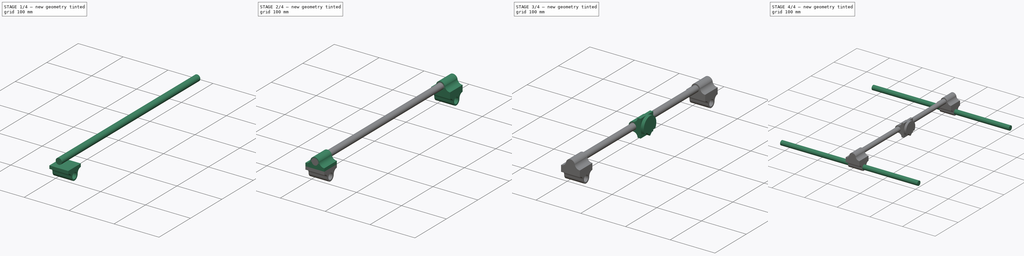
[diagram: build sequence overview — one tinted view per stage of 4, left to right]
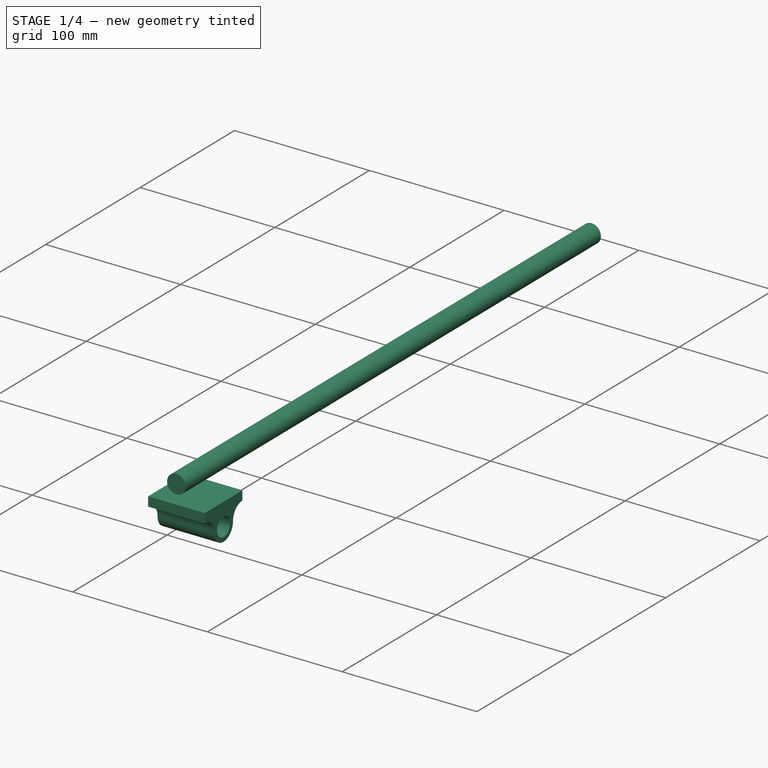
[diagram: stage 1 of 4 — iso view after this stage's code; geometry added in this stage tinted green]
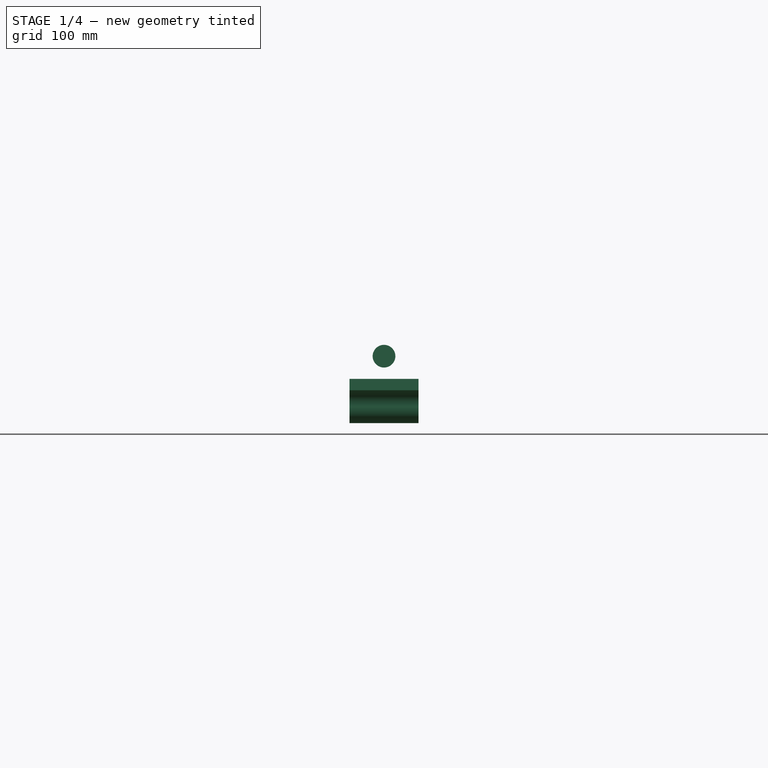
[diagram: stage 1 of 4 — front view after this stage's code; geometry added in this stage tinted green]
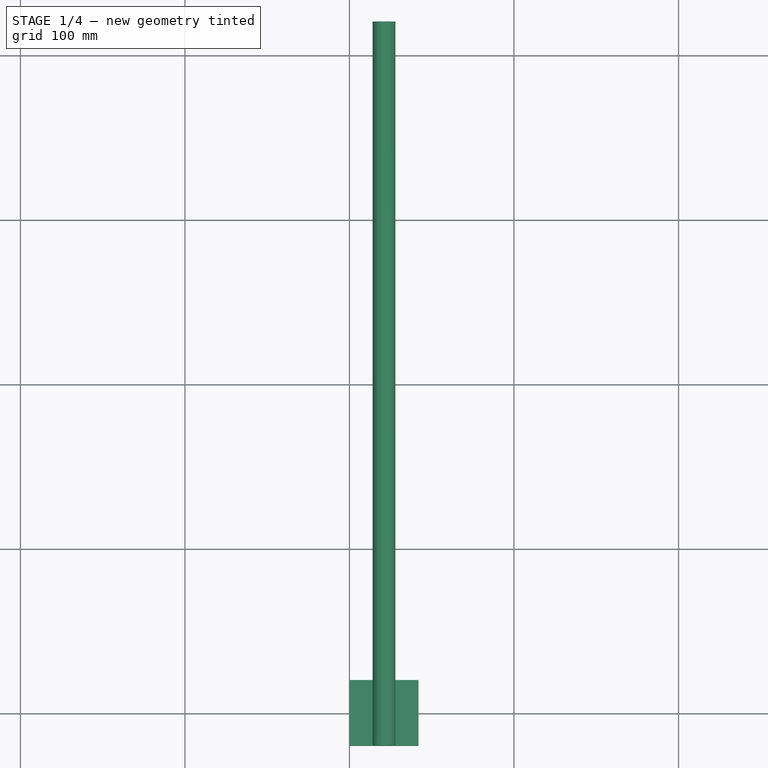
[diagram: stage 1 of 4 — top view after this stage's code; geometry added in this stage tinted green]
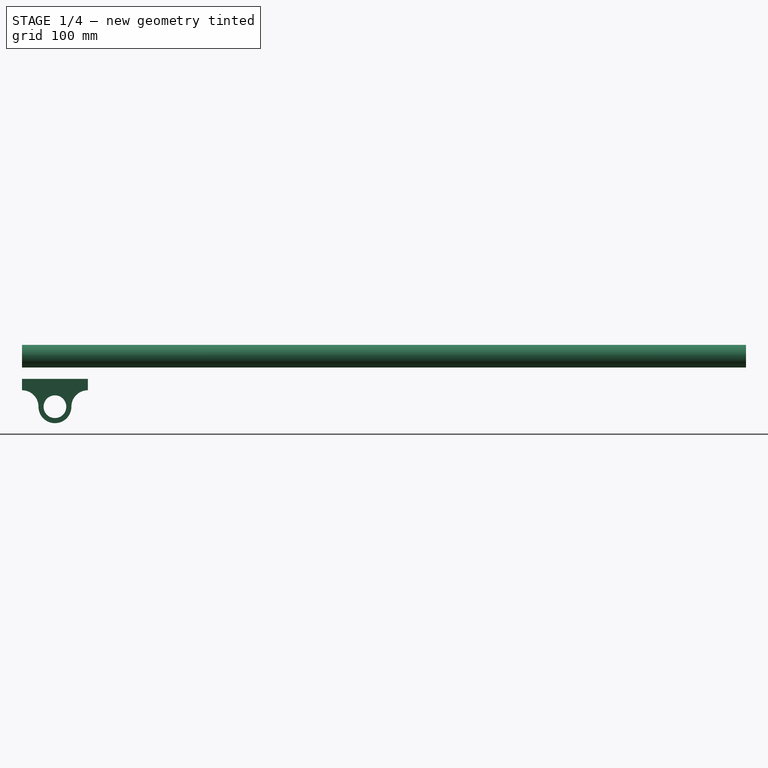
[diagram: stage 1 of 4 — right view after this stage's code; geometry added in this stage tinted green]
FCSTD DOCUMENT  (FreeCAD 0.19R)
Label: Plotter
License: All rights reserved
LicenseURL: http://en.wikipedia.org/wiki/All_rights_reserved
objects: Sketcher::SketchObject×9, PartDesign::Pad×9, PartDesign::Body×9, Part::MultiFuse×1
note: 37 computed .brp shape members not serialized (recipe doc carries the construction recipe); baked Part::Feature solids carry a one-line shape summary decoded from their .brp

FEATURE [PartDesign::Body] Body005  label="Y_Axis_Socket2"
  Group = -> [Sketch015,Pad005]
  Origin = -> Origin005
  Tip = -> Pad005
FEATURE [Sketcher::SketchObject] Sketch016
  FullyConstrained = true
  Placement = pos=(0,-20,0) rot=(1,0,0;1.5708rad)
  sketch-geometry (1):
    g0: Circle CenterX=21 CenterY=30.7 CenterZ=0 NormalX=0 NormalY=0 NormalZ=1 AngleXU=0 Radius=6.9
  constraints (3):
    c: Radius(g0) = 6.9
    c: DistanceX(g-1,g0) = 21
    c: DistanceY(g-1,g0) = 30.7
FEATURE [PartDesign::Pad] Pad006
  Direction = (1,1,1)
  Length = 440
  Length2 = 100
  Placement = pos=(0,-20,0) rot=(1,0,0;1.5708rad)
  Profile = -> Sketch016
  Refine = true
  Reversed = true
  Type = 0
FEATURE [PartDesign::Body] Body008  label="A_Axis"
  Group = -> [Sketch018,Pad008]
  Origin = -> Origin008
  Tip = -> Pad008
FEATURE [PartDesign::Pad] Pad001
  Direction = (1,1,1)
  Length = 42
  Length2 = 100
  Placement = pos=(0,0,0) rot=(0.57735,0.57735,0.57735;2.0944rad)
  Profile = -> Sketch011
  Refine = true
  Type = 0
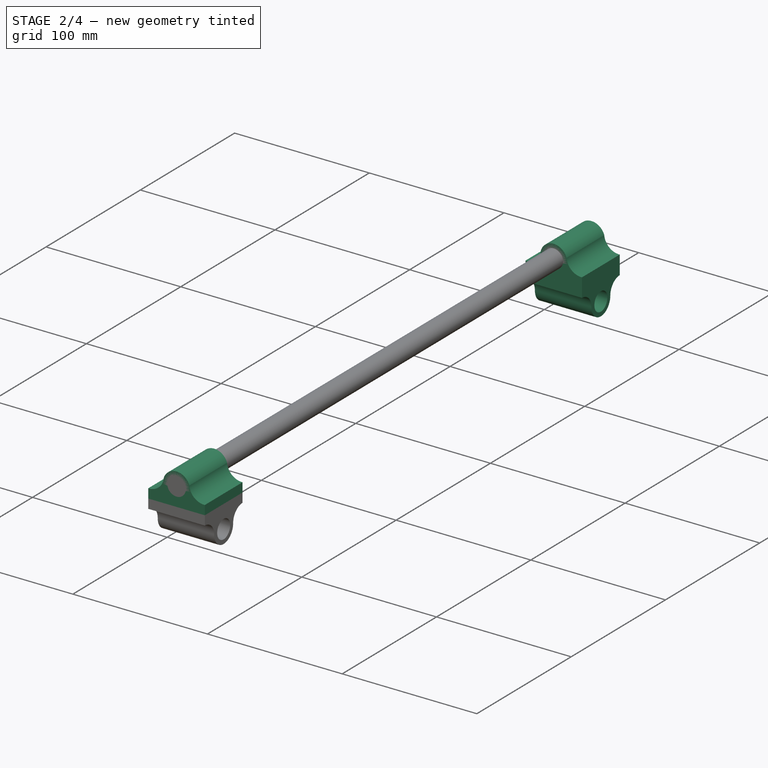
[diagram: stage 2 of 4 — iso view after this stage's code; geometry added in this stage tinted green]
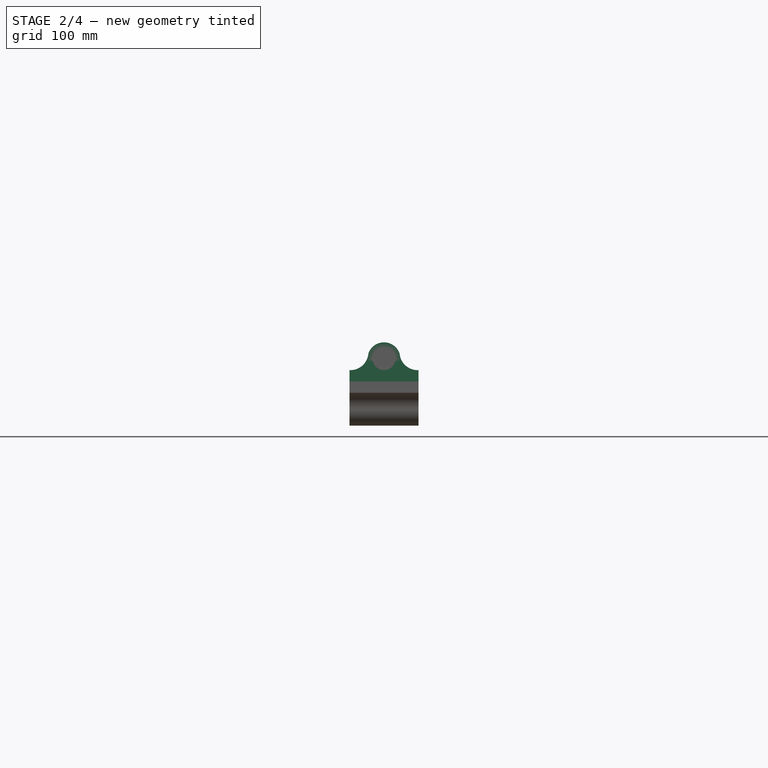
[diagram: stage 2 of 4 — front view after this stage's code; geometry added in this stage tinted green]
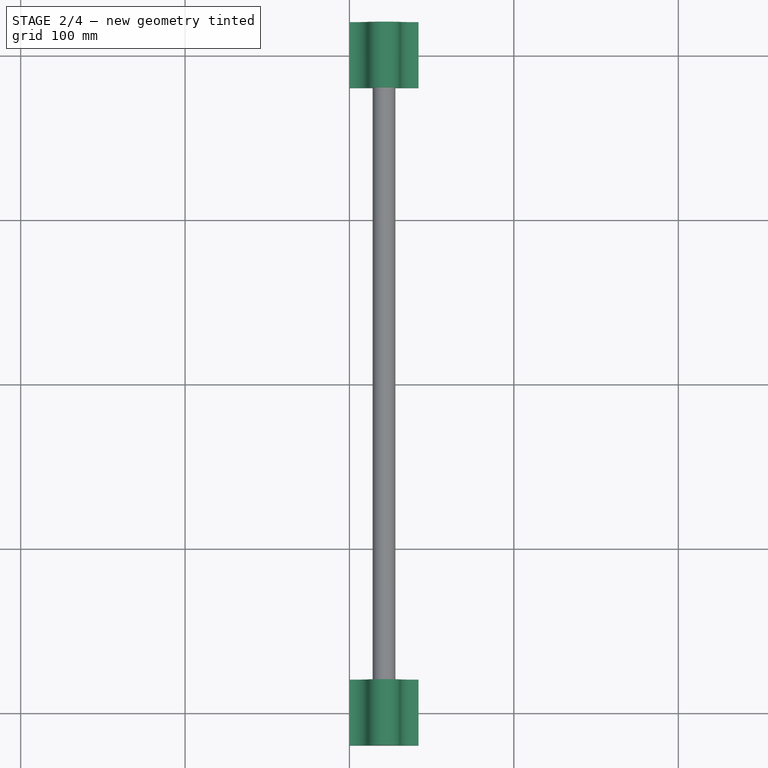
[diagram: stage 2 of 4 — top view after this stage's code; geometry added in this stage tinted green]
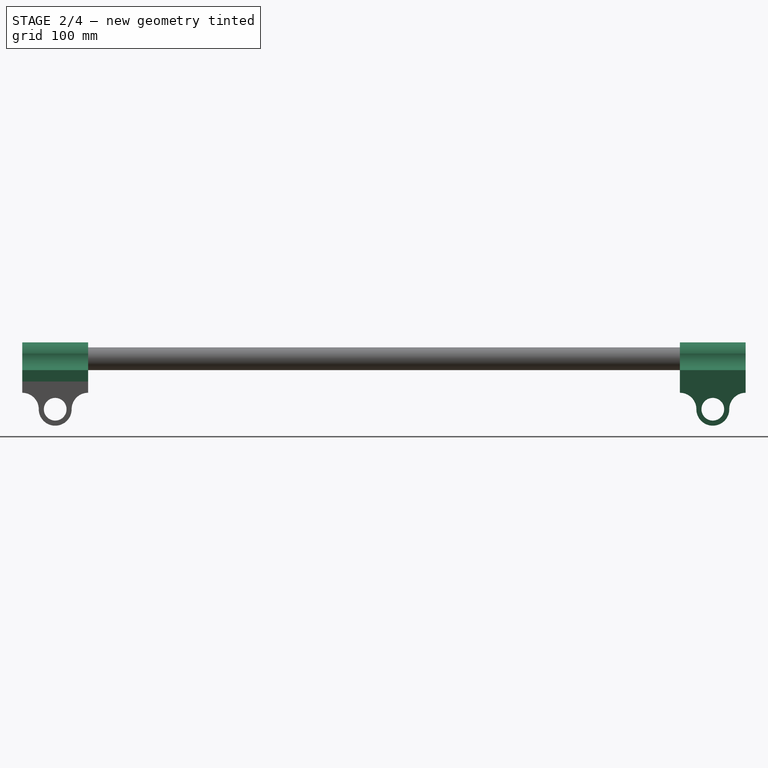
[diagram: stage 2 of 4 — right view after this stage's code; geometry added in this stage tinted green]
FEATURE [PartDesign::Body] Body  label="X_Axis_Rail1"
  Group = -> [Sketch,Pad]
  Origin = -> Origin
  Tip = -> Pad
FEATURE [Sketcher::SketchObject] Sketch011
  FullyConstrained = true
  Placement = pos=(0,0,0) rot=(0.57735,0.57735,0.57735;2.0944rad)
  sketch-geometry (7):
    g0: Circle CenterX=0 CenterY=0 CenterZ=0 NormalX=0 NormalY=0 NormalZ=1 AngleXU=0 Radius=6.9
    g1: LineSegment StartX=-20 StartY=16.9 StartZ=0 EndX=20 EndY=16.9 EndZ=0
    g2: LineSegment StartX=20 StartY=16.9 StartZ=0 EndX=20 EndY=10 EndZ=0
    g3: ArcOfCircle CenterX=20 CenterY=-2.6e-15 CenterZ=0 NormalX=0 NormalY=0 NormalZ=1 AngleXU=0 Radius=10 StartAngle=1.5708 EndAngle=3.14159
    g4: ArcOfCircle CenterX=4e-16 CenterY=5.56859e-07 CenterZ=0 NormalX=0 NormalY=0 NormalZ=1 AngleXU=0 Radius=10 StartAngle=3.14159 EndAngle=6.28319
    g5: ArcOfCircle CenterX=-20 CenterY=-2.4e-15 CenterZ=0 NormalX=0 NormalY=0 NormalZ=1 AngleXU=0 Radius=10 StartAngle=2e-16 EndAngle=1.5708
    g6: LineSegment StartX=-20 StartY=10 StartZ=0 EndX=-20 EndY=16.9 EndZ=0
  constraints (21):
    c: Coincident(g0,g-1)
    c: Radius(g0) = 6.9
    c: Coincident(g1,g2)
    c: Vertical(g2)
    c: DistanceX(g1,g1) = 40
    c: DistanceY(g2,g2) = 6.9
    c: DistanceY(g0,g1) = 16.9
    c: Symmetric(g1,g1,g-2)
    c: Coincident(g3,g2)
    c: PointOnObject(g3,g-1)
    c: Radius(g3) = 10
    c: Coincident(g4,g3)
    c: Radius(g4) = 10
    c: Symmetric(g4,g3,g-2)
    c: DistanceX(g4,g3) = 20
    c: Coincident(g5,g4)
    c: Radius(g5) = 10
    c: Coincident(g6,g5)
    c: Coincident(g6,g1)
    c: Vertical(g6)
    c: Equal(g6,g2)
FEATURE [Sketcher::SketchObject] Sketch012
  FullyConstrained = true
  Placement = pos=(0,400,0) rot=(0.57735,0.57735,0.57735;2.0944rad)
  sketch-geometry (7):
    g0: Circle CenterX=0 CenterY=0 CenterZ=0 NormalX=0 NormalY=0 NormalZ=1 AngleXU=0 Radius=6.9
    g1: LineSegment StartX=-20 StartY=16.9 StartZ=0 EndX=20 EndY=16.9 EndZ=0
    g2: LineSegment StartX=20 StartY=16.9 StartZ=0 EndX=20 EndY=10 EndZ=0
    g3: ArcOfCircle CenterX=20 CenterY=-2.6e-15 CenterZ=0 NormalX=0 NormalY=0 NormalZ=1 AngleXU=0 Radius=10 StartAngle=1.5708 EndAngle=3.14159
    g4: ArcOfCircle CenterX=4e-16 CenterY=5.56859e-07 CenterZ=0 NormalX=0 NormalY=0 NormalZ=1 AngleXU=0 Radius=10 StartAngle=3.14159 EndAngle=6.28319
    g5: ArcOfCircle CenterX=-20 CenterY=-2.4e-15 CenterZ=0 NormalX=0 NormalY=0 NormalZ=1 AngleXU=0 Radius=10 StartAngle=2e-16 EndAngle=1.5708
    g6: LineSegment StartX=-20 StartY=10 StartZ=0 EndX=-20 EndY=16.9 EndZ=0
  constraints (21):
    c: Coincident(g0,g-1)
    c: Radius(g0) = 6.9
    c: Coincident(g1,g2)
    c: Vertical(g2)
    c: DistanceX(g1,g1) = 40
    c: DistanceY(g2,g2) = 6.9
    c: DistanceY(g0,g1) = 16.9
    c: Symmetric(g1,g1,g-2)
    c: Coincident(g3,g2)
    c: PointOnObject(g3,g-1)
    c: Radius(g3) = 10
    c: Coincident(g4,g3)
    c: Radius(g4) = 10
    c: Symmetric(g4,g3,g-2)
    c: DistanceX(g4,g3) = 20
    c: Coincident(g5,g4)
    c: Radius(g5) = 10
    c: Coincident(g6,g5)
    c: Coincident(g6,g1)
    c: Vertical(g6)
    c: Equal(g6,g2)
FEATURE [PartDesign::Pad] Pad002
  Direction = (1,1,1)
  Length = 42
  Length2 = 100
  Placement = pos=(0,400,0) rot=(0.57735,0.57735,0.57735;2.0944rad)
  Profile = -> Sketch012
  Refine = true
  Type = 0
FEATURE [PartDesign::Body] Body003  label="X_Axis_Rail2"
  Group = -> [Sketch013,Pad003]
  Origin = -> Origin003
  Tip = -> Pad003
FEATURE [Sketcher::SketchObject] Sketch014
  FullyConstrained = true
  Placement = pos=(0,0,0) rot=(1,0,0;1.5708rad)
  expr: Constraints[12] = 23.8 + 6.9
  expr: Constraints[6] = 16.9 + 6.9
  sketch-geometry (9):
    g0: LineSegment StartX=-2.8e-15 StartY=23.8 StartZ=0 EndX=-2.8e-15 EndY=16.9 EndZ=0
    g1: LineSegment StartX=-2.8e-15 StartY=16.9 StartZ=0 EndX=42 EndY=16.9 EndZ=0
    g2: LineSegment StartX=42 StartY=16.9 StartZ=0 EndX=42 EndY=23.8 EndZ=0
    g3: ArcOfCircle CenterX=0.536994 CenterY=34.7869 CenterZ=0 NormalX=0 NormalY=0 NormalZ=1 AngleXU=0 Radius=11 StartAngle=4.66355 EndAngle=6.19335
    g4: ArcOfCircle CenterX=21 CenterY=30.7 CenterZ=0 NormalX=0 NormalY=0 NormalZ=1 AngleXU=0 Radius=10 StartAngle=0.315193 EndAngle=2.8264
    g5: ArcOfCircle CenterX=41.463 CenterY=34.7869 CenterZ=0 NormalX=0 NormalY=0 NormalZ=1 AngleXU=0 Radius=11 StartAngle=3.23143 EndAngle=4.76123
    g6: LineSegment StartX=21 StartY=52.63 StartZ=0 EndX=21 EndY=19.82 EndZ=0
    g7: LineSegment StartX=-7.22 StartY=33.8 StartZ=0 EndX=53.79 EndY=33.8 EndZ=0
    g8: Circle CenterX=21 CenterY=30.7 CenterZ=0 NormalX=0 NormalY=0 NormalZ=1 AngleXU=0 Radius=6.9
  constraints (29):
    c: PointOnObject(g0,g-2)
    c: Vertical(g0)
    c: Coincident(g0,g1)
    c: Horizontal(g1)
    c: Coincident(g1,g2)
    c: Vertical(g2)
    c: DistanceY(g-1,g0) = 23.8
    c: DistanceY(g0,g0) = 6.9
    c: Coincident(g3,g0)
    c: Coincident(g4,g3)
    c: Coincident(g5,g4)
    c: Radius(g3) = 11
    c: DistanceY(g4) = 30.7
    c: Coincident(g2,g5)
    c: Equal(g2,g0)
    c: DistanceX(g1,g1) = 42
    c: DistanceX(g-1,g6) = 21
    c: Symmetric(g3,g4,g6)
    c: Horizontal(g7)
    c: DistanceY(g-1,g7) = 33.8
    c: PointOnObject(g3,g7)
    c: Symmetric(g3,g5,g6)
    c: Radius(g4) = 10
    c: DistanceX(g-2,g7) = 53.79
    c: DistanceY(g-1,g6) = 19.82
    c: Distance(g6) = 32.81
    c: DistanceX(g7,g7) = 61.01
    c: Coincident(g8,g4)
    c: Radius(g8) = 6.9
FEATURE [PartDesign::Pad] Pad004
  Direction = (1,1,1)
  Length = 40
  Length2 = 100
  Midplane = true
  Placement = pos=(0,0,0) rot=(1,0,0;1.5708rad)
  Profile = -> Sketch014
  Refine = true
  Type = 0
FEATURE [PartDesign::Body] Body004  label="Y_Axis_Socket1"
  Group = -> [Sketch014,Pad004]
  Origin = -> Origin004
  Tip = -> Pad004
FEATURE [Sketcher::SketchObject] Sketch015
  FullyConstrained = true
  Placement = pos=(0,400,0) rot=(1,0,0;1.5708rad)
  expr: Constraints[6] = 16.9 + 6.9
  expr: Constraints[12] = 23.8 + 6.9
  sketch-geometry (9):
    g0: LineSegment StartX=-2.8e-15 StartY=23.8 StartZ=0 EndX=-2.8e-15 EndY=16.9 EndZ=0
    g1: LineSegment StartX=-2.8e-15 StartY=16.9 StartZ=0 EndX=42 EndY=16.9 EndZ=0
    g2: LineSegment StartX=42 StartY=16.9 StartZ=0 EndX=42 EndY=23.8 EndZ=0
    g3: ArcOfCircle CenterX=0.536994 CenterY=34.7869 CenterZ=0 NormalX=0 NormalY=0 NormalZ=1 AngleXU=0 Radius=11 StartAngle=4.66355 EndAngle=6.19335
    g4: ArcOfCircle CenterX=21 CenterY=30.7 CenterZ=0 NormalX=0 NormalY=0 NormalZ=1 AngleXU=0 Radius=10 StartAngle=0.315193 EndAngle=2.8264
    g5: ArcOfCircle CenterX=41.463 CenterY=34.7869 CenterZ=0 NormalX=0 NormalY=0 NormalZ=1 AngleXU=0 Radius=11 StartAngle=3.23143 EndAngle=4.76123
    g6: LineSegment StartX=21 StartY=52.63 StartZ=0 EndX=21 EndY=19.82 EndZ=0
    g7: LineSegment StartX=-7.22 StartY=33.8 StartZ=0 EndX=53.79 EndY=33.8 EndZ=0
    g8: Circle CenterX=21 CenterY=30.7 CenterZ=0 NormalX=0 NormalY=0 NormalZ=1 AngleXU=0 Radius=6.9
  constraints (29):
    c: PointOnObject(g0,g-2)
    c: Vertical(g0)
    c: Coincident(g0,g1)
    c: Horizontal(g1)
    c: Coincident(g1,g2)
    c: Vertical(g2)
    c: DistanceY(g-1,g0) = 23.8
    c: DistanceY(g0,g0) = 6.9
    c: Coincident(g3,g0)
    c: Coincident(g4,g3)
    c: Coincident(g5,g4)
    c: Radius(g3) = 11
    c: DistanceY(g4) = 30.7
    c: Coincident(g2,g5)
    c: Equal(g2,g0)
    c: DistanceX(g1,g1) = 42
    c: DistanceX(g-1,g6) = 21
    c: Symmetric(g3,g4,g6)
    c: Horizontal(g7)
    c: DistanceY(g-1,g7) = 33.8
    c: PointOnObject(g3,g7)
    c: Symmetric(g3,g5,g6)
    c: Radius(g4) = 10
    c: DistanceX(g-2,g7) = 53.79
    c: DistanceY(g-1,g6) = 19.82
    c: Distance(g6) = 32.81
    c: DistanceX(g7,g7) = 61.01
    c: Coincident(g8,g4)
    c: Radius(g8) = 6.9
FEATURE [PartDesign::Pad] Pad005
  Direction = (1,1,1)
  Length = 40
  Length2 = 100
  Midplane = true
  Placement = pos=(0,400,0) rot=(1,0,0;1.5708rad)
  Profile = -> Sketch015
  Refine = true
  Type = 0
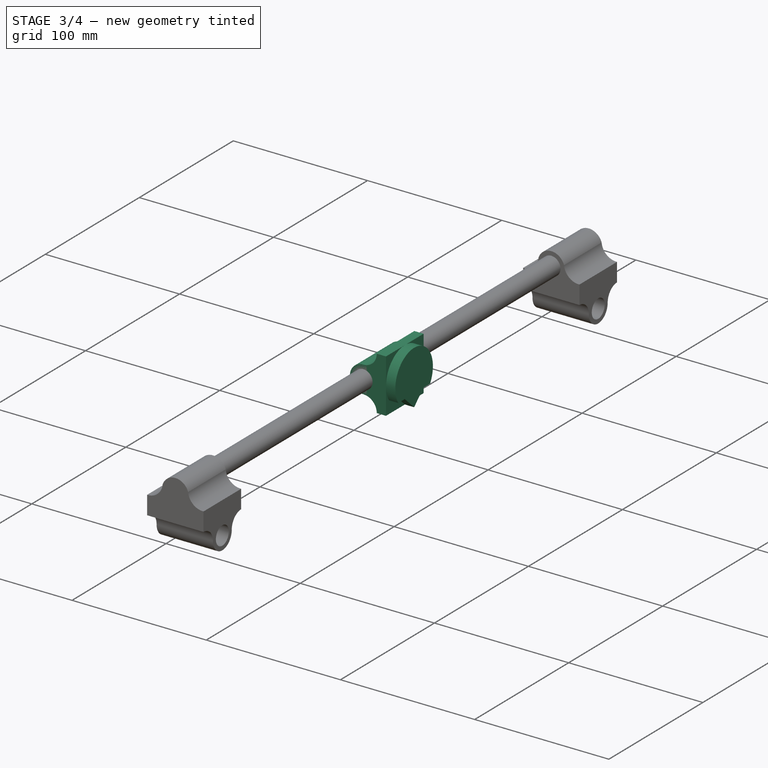
[diagram: stage 3 of 4 — iso view after this stage's code; geometry added in this stage tinted green]
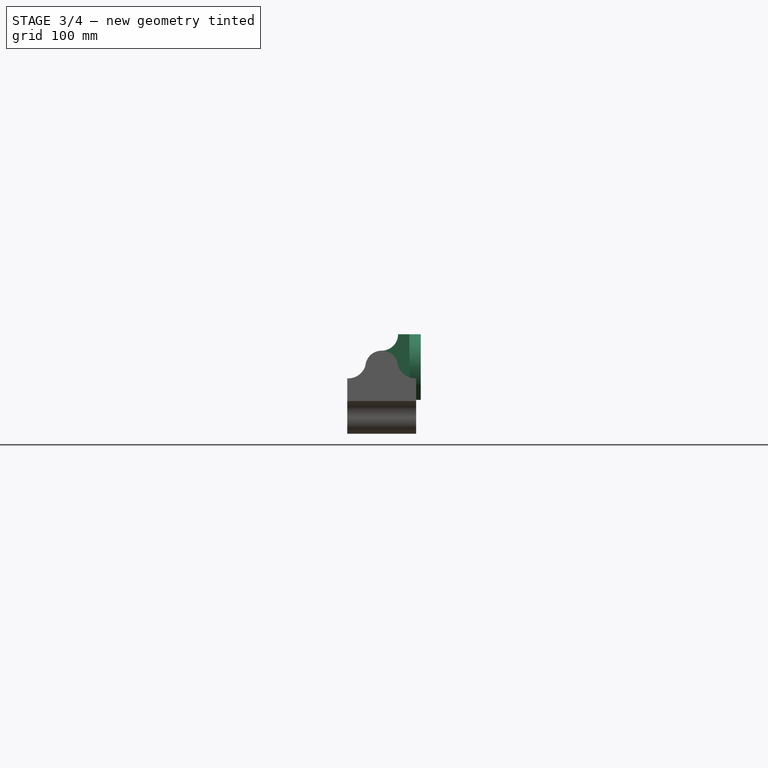
[diagram: stage 3 of 4 — front view after this stage's code; geometry added in this stage tinted green]
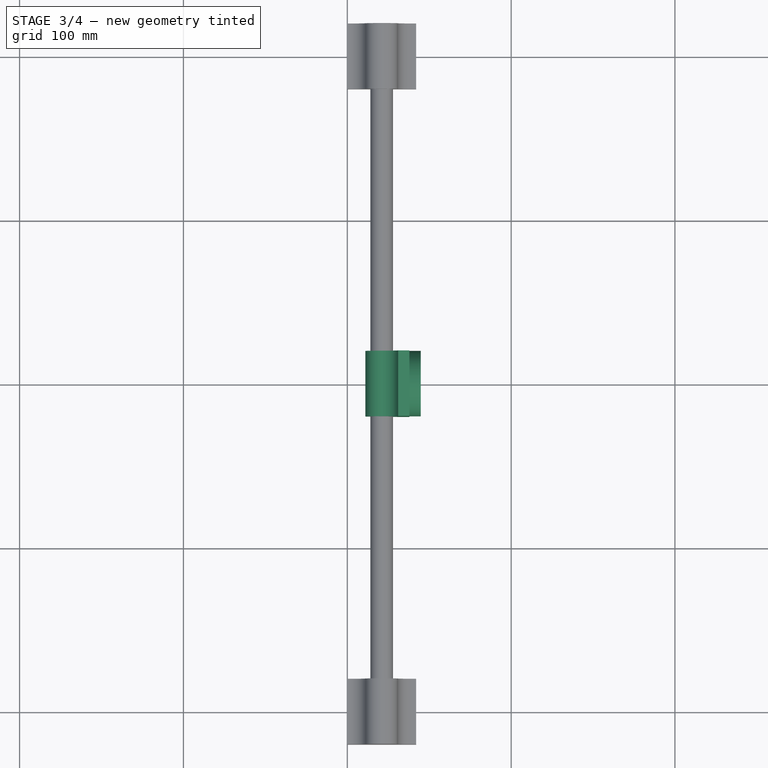
[diagram: stage 3 of 4 — top view after this stage's code; geometry added in this stage tinted green]
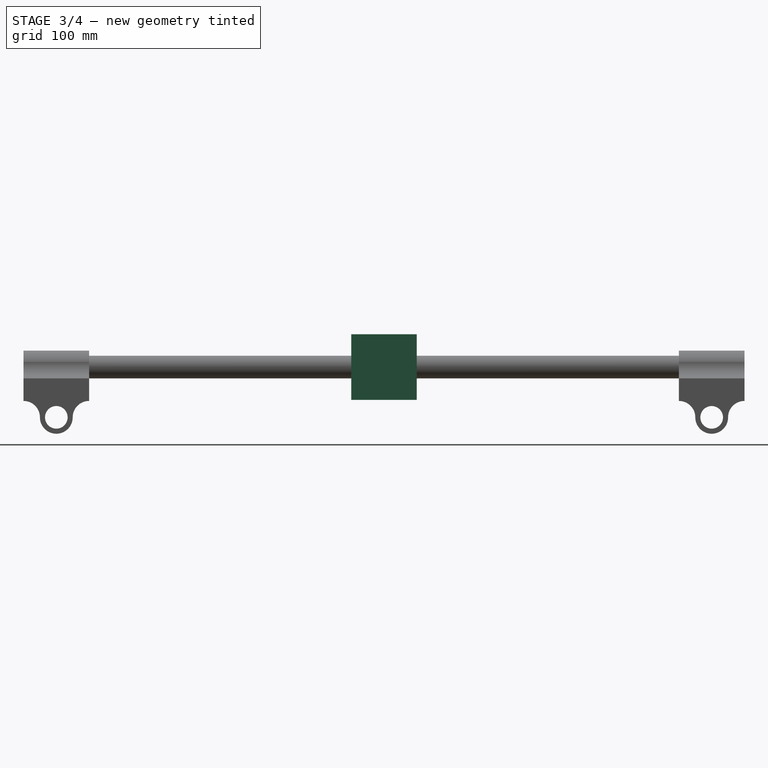
[diagram: stage 3 of 4 — right view after this stage's code; geometry added in this stage tinted green]
FEATURE [PartDesign::Body] Body006  label="Y_Axis_Rail"
  Group = -> [Sketch016,Pad006]
  Origin = -> Origin006
  Tip = -> Pad006
FEATURE [Sketcher::SketchObject] Sketch017
  FullyConstrained = true
  Placement = pos=(0,200,0) rot=(1,0,0;1.5708rad)
  sketch-geometry (9):
    g0: Circle CenterX=21 CenterY=30.7 CenterZ=0 NormalX=0 NormalY=0 NormalZ=1 AngleXU=0 Radius=6.9
    g1: ArcOfCircle CenterX=21 CenterY=30.7 CenterZ=0 NormalX=0 NormalY=0 NormalZ=1 AngleXU=0 Radius=10 StartAngle=1.5708 EndAngle=4.71239
    g2: LineSegment StartX=21 StartY=51.79 StartZ=0 EndX=21 EndY=0 EndZ=0
    g3: LineSegment StartX=3.39 StartY=30.7 StartZ=0 EndX=44.96 EndY=30.7 EndZ=0
    g4: ArcOfCircle CenterX=21 CenterY=50.7 CenterZ=0 NormalX=0 NormalY=0 NormalZ=1 AngleXU=0 Radius=10 StartAngle=4.71239 EndAngle=6.28319
    g5: ArcOfCircle CenterX=21 CenterY=10.7 CenterZ=0 NormalX=0 NormalY=0 NormalZ=1 AngleXU=0 Radius=10 StartAngle=0 EndAngle=1.5708
    g6: LineSegment StartX=37.9 StartY=50.7 StartZ=0 EndX=37.9 EndY=10.7 EndZ=0
    g7: LineSegment StartX=37.9 StartY=10.7 StartZ=0 EndX=31 EndY=10.7 EndZ=0
    g8: LineSegment StartX=31 StartY=50.7 StartZ=0 EndX=37.9 EndY=50.7 EndZ=0
  constraints (29):
    c: Radius(g0) = 6.9
    c: DistanceY(g0) = 30.7
    c: DistanceX(g0) = 21
    c: Coincident(g1,g0)
    c: Vertical(g2)
    c: DistanceX(g2) = 21
    c: PointOnObject(g1,g2)
    c: PointOnObject(g1,g2)
    c: Horizontal(g3)
    c: Distance(g3) = 41.57
    c: DistanceX(g3) = 3.39
    c: DistanceY(g-1,g3) = 30.7
    c: Coincident(g4,g1)
    c: Coincident(g5,g1)
    c: Symmetric(g5,g4,g3)
    c: Radius(g4) = 10
    c: PointOnObject(g4,g2)
    c: Radius(g5) = 10
    c: Distance(g4,g5) = 40
    c: Radius(g1) = 10
    c: Coincident(g6,g7)
    c: Coincident(g7,g5)
    c: Horizontal(g7)
    c: Coincident(g8,g4)
    c: Coincident(g8,g6)
    c: Symmetric(g6,g6,g3)
    c: DistanceX(g5,g6) = 6.9
    c: PointOnObject(g2,g-1)
    c: Distance(g2) = 51.79
FEATURE [PartDesign::Pad] Pad007
  Direction = (1,1,1)
  Length = 40
  Length2 = 100
  Midplane = true
  Placement = pos=(0,200,0) rot=(1,0,0;1.5708rad)
  Profile = -> Sketch017
  Refine = true
  Type = 0
FEATURE [PartDesign::Body] Body007  label="Y_Axis_Sled"
  Group = -> [Sketch017,Pad007]
  Origin = -> Origin007
  Tip = -> Pad007
FEATURE [Sketcher::SketchObject] Sketch018  label="A_Sketch"
  FullyConstrained = true
  Placement = pos=(37.9,0,0) rot=(0.57735,0.57735,0.57735;2.0944rad)
  sketch-geometry (7):
    g0: ArcOfCircle CenterX=200.05 CenterY=30.7 CenterZ=0 NormalX=0 NormalY=0 NormalZ=1 AngleXU=0 Radius=20 StartAngle=5.71927 EndAngle=9.98869
    g1: LineSegment StartX=200.05 StartY=58.635 StartZ=0 EndX=200.05 EndY=2.765 EndZ=0
    g2: LineSegment StartX=183.147 StartY=20.01 StartZ=0 EndX=190.05 EndY=20.01 EndZ=0
    g3: LineSegment StartX=216.953 StartY=20.01 StartZ=0 EndX=210.05 EndY=20.01 EndZ=0
    g4: LineSegment StartX=190.05 StartY=20.01 StartZ=0 EndX=200.05 EndY=10.7 EndZ=0
    g5: LineSegment StartX=210.05 StartY=20.01 StartZ=0 EndX=200.05 EndY=10.7 EndZ=0
    g6: LineSegment StartX=161.84 StartY=30.7 StartZ=0 EndX=238.26 EndY=30.7 EndZ=0
  constraints (20):
    c: Radius(g0) = 20
    c: Distance(g0,g-1) = 30.7
    c: Symmetric(g0,g0,g1)
    c: Coincident(g2,g0)
    c: Coincident(g3,g0)
    c: Coincident(g4,g2)
    c: PointOnObject(g4,g1)
    c: Coincident(g5,g3)
    c: Coincident(g5,g4)
    c: Symmetric(g2,g3,g1)
    c: Distance(g2,g3) = 20
    c: Angle(g6,g-1) = 0
    c: Distance(g6) = 76.42
    c: Symmetric(g6,g6,g0)
    c: DistanceX(g-2,g0) = 200.05
    c: Parallel(g2,g6)
    c: Distance(g0,g6) = 10.69
    c: Distance(g4,g0) = 20
    c: Symmetric(g1,g1,g6)
    c: Distance(g1) = 55.87
FEATURE [PartDesign::Pad] Pad008
  Direction = (1,1,1)
  Length = 6.9
  Length2 = 100
  Placement = pos=(37.9,0,0) rot=(0.57735,0.57735,0.57735;2.0944rad)
  Profile = -> Sketch018
  Refine = true
  Type = 0
FEATURE [PartDesign::Body] Body001  label="X_Axis_Sled1"
  Group = -> [Sketch011,Pad001]
  Origin = -> Origin001
  Tip = -> Pad001
FEATURE [Part::MultiFuse] Fusion  label="Y_Rail"
  Refine = true
  Shapes = -> [Body006,Body001,Body002,Body004,Body005]
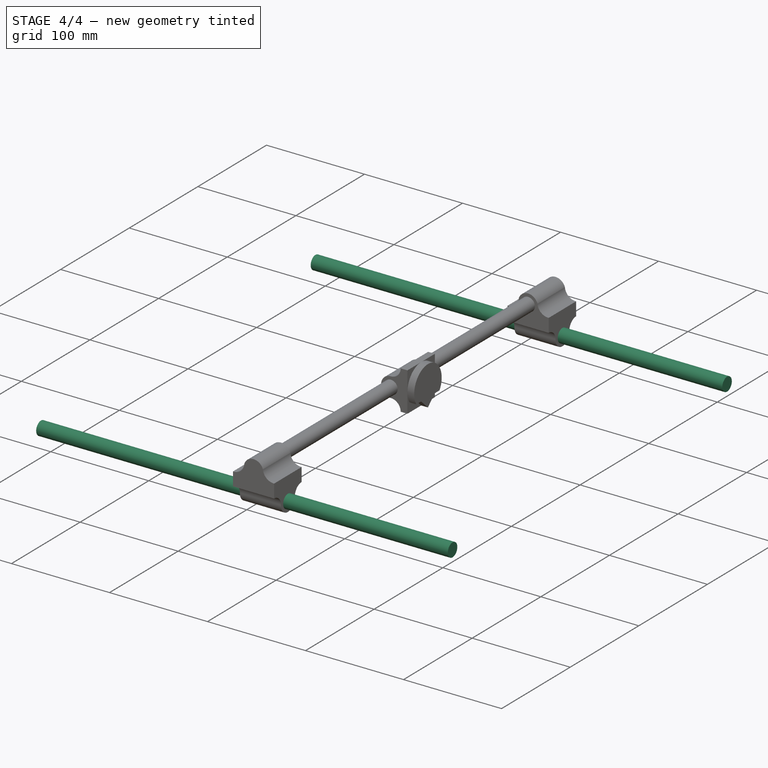
[diagram: stage 4 of 4 — iso view after this stage's code; geometry added in this stage tinted green]
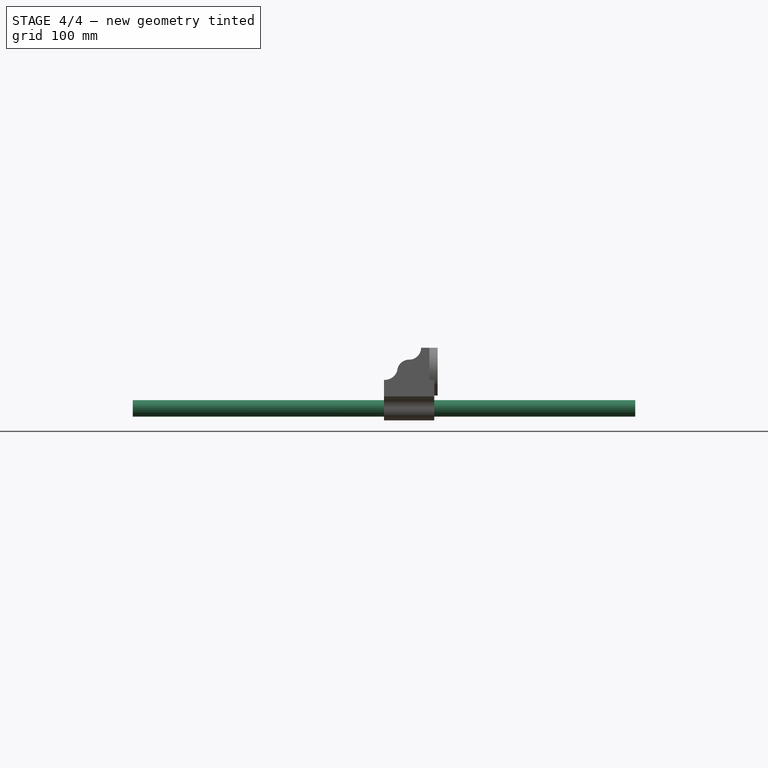
[diagram: stage 4 of 4 — front view after this stage's code; geometry added in this stage tinted green]
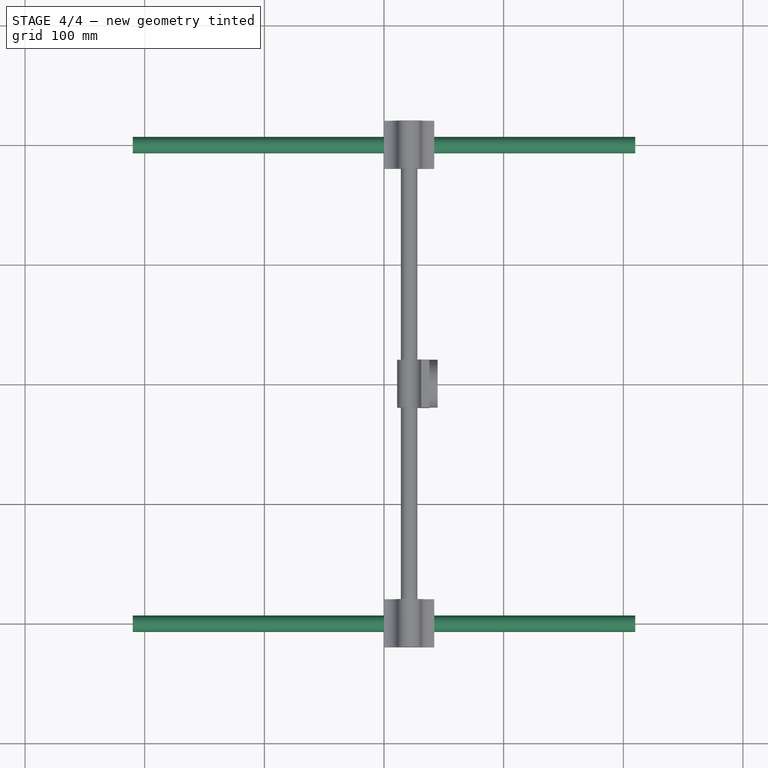
[diagram: stage 4 of 4 — top view after this stage's code; geometry added in this stage tinted green]
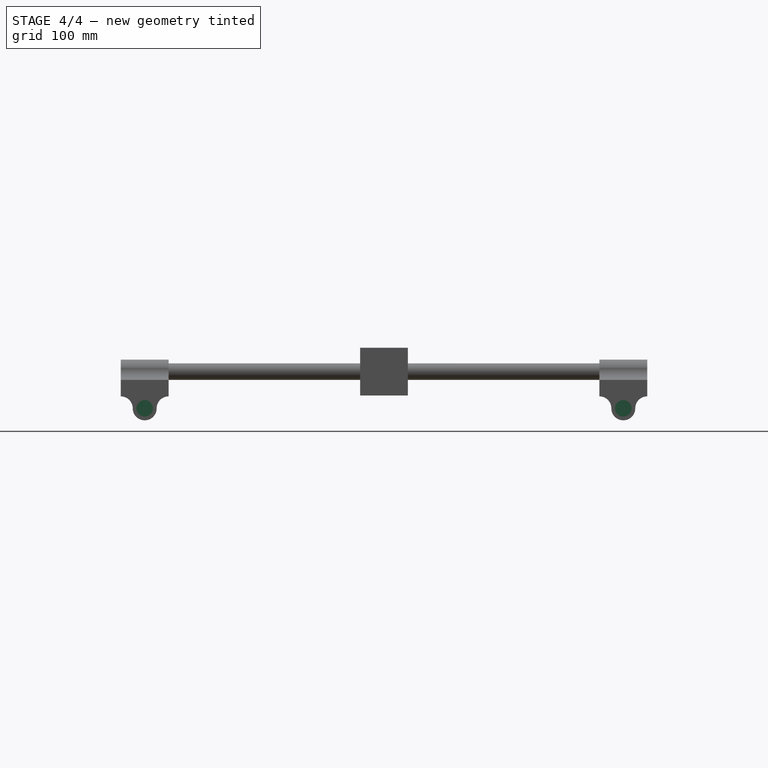
[diagram: stage 4 of 4 — right view after this stage's code; geometry added in this stage tinted green]
FEATURE [Sketcher::SketchObject] Sketch
  FullyConstrained = true
  Placement = pos=(0,0,0) rot=(0.57735,0.57735,0.57735;2.0944rad)
  sketch-geometry (1):
    g0: Circle CenterX=0 CenterY=0 CenterZ=0 NormalX=0 NormalY=0 NormalZ=1 AngleXU=0 Radius=6.9
  constraints (2):
    c: Coincident(g0,g-1)
    c: Radius(g0) = 6.9  'X-Axis'
FEATURE [PartDesign::Pad] Pad
  Direction = (1,1,1)
  Length = 420
  Length2 = 100
  Midplane = true
  Placement = pos=(0,0,0) rot=(0.57735,0.57735,0.57735;2.0944rad)
  Profile = -> Sketch
  Refine = true
  Type = 0
FEATURE [PartDesign::Body] Body002  label="X_Axis_Sled2"
  Group = -> [Sketch012,Pad002]
  Origin = -> Origin002
  Tip = -> Pad002
FEATURE [Sketcher::SketchObject] Sketch013
  FullyConstrained = true
  Placement = pos=(0,400,0) rot=(0.57735,0.57735,0.57735;2.0944rad)
  sketch-geometry (1):
    g0: Circle CenterX=0 CenterY=0 CenterZ=0 NormalX=0 NormalY=0 NormalZ=1 AngleXU=0 Radius=6.9
  constraints (2):
    c: Coincident(g0,g-1)
    c: Radius(g0) = 6.9  'X-Axis'
FEATURE [PartDesign::Pad] Pad003
  Direction = (1,1,1)
  Length = 420
  Length2 = 100
  Midplane = true
  Placement = pos=(0,400,0) rot=(0.57735,0.57735,0.57735;2.0944rad)
  Profile = -> Sketch013
  Refine = true
  Type = 0
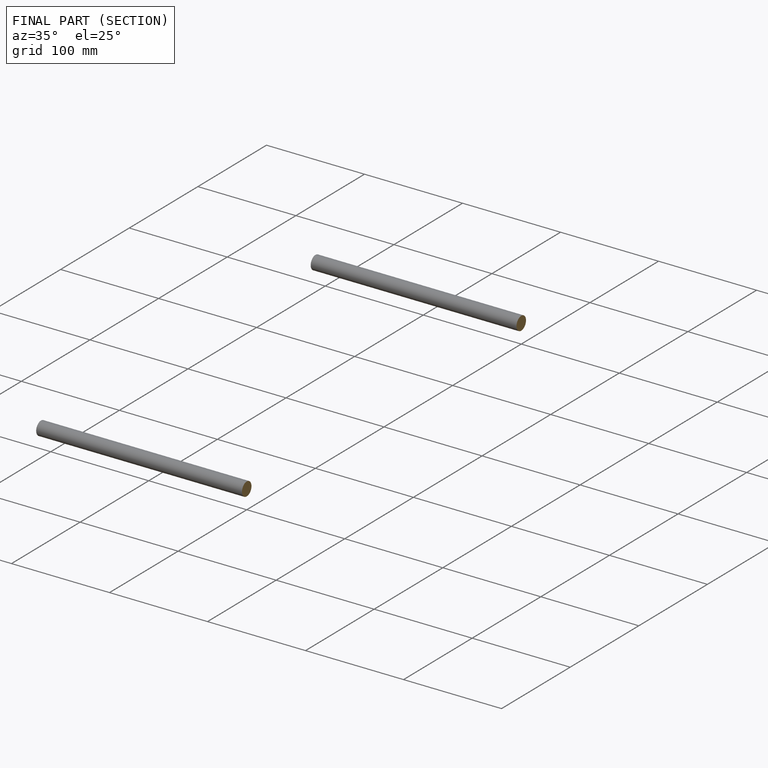
[diagram: finished part — half-section view (interior)]
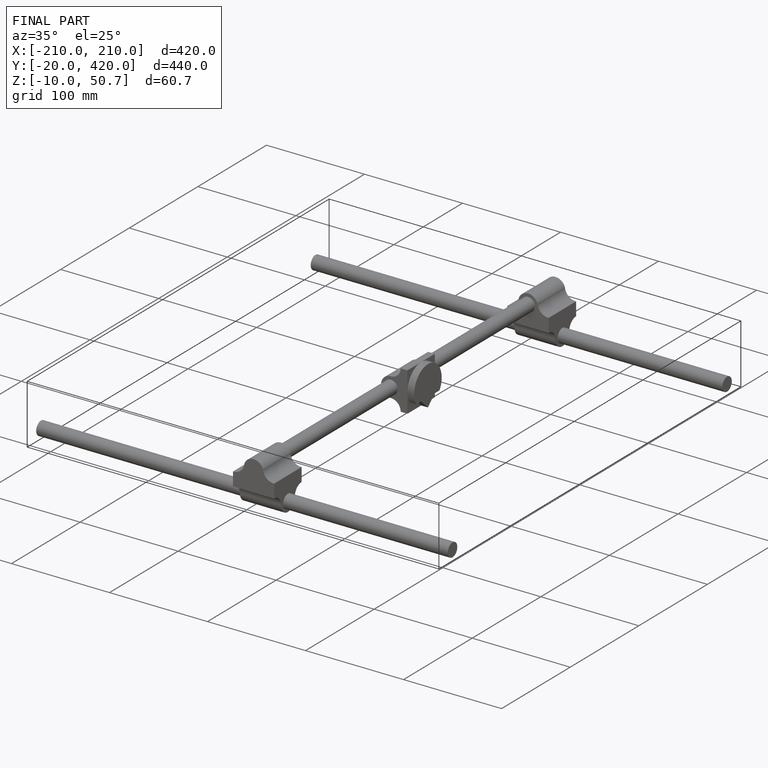
[diagram: finished part — iso view with bounding-box wireframe]
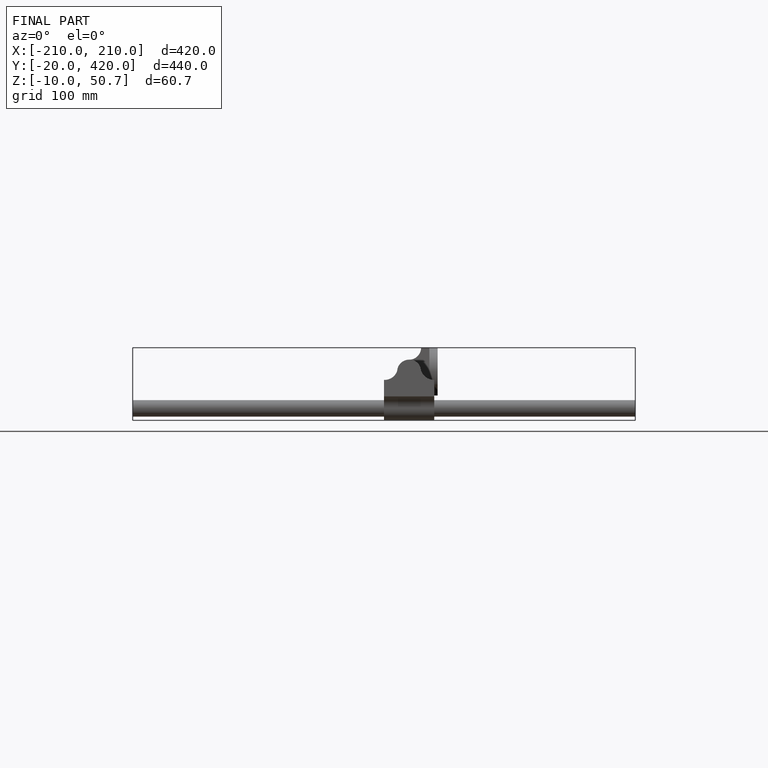
[diagram: finished part — front view with bounding-box wireframe]
